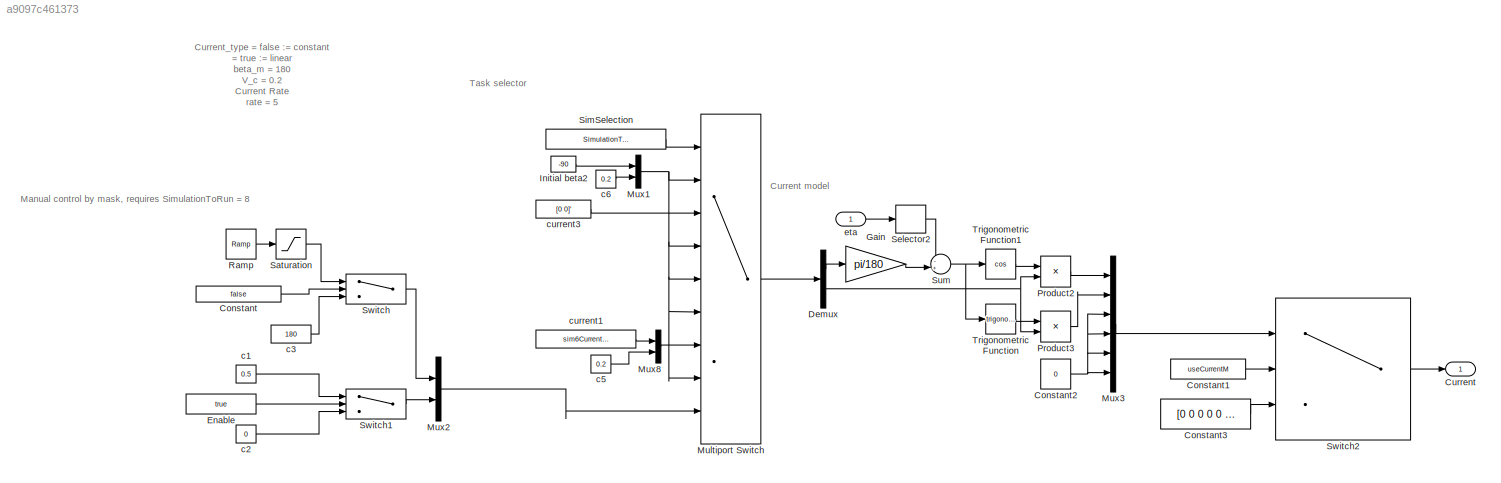
MODEL slx_a9097c461373
KIND model
CONFIG AbsTol = auto
CONFIG EnableMultiTasking = off
CONFIG FixedStep = 0.1
CONFIG MaxStep = auto
CONFIG MinStep = auto
CONFIG RelTol = 1e-3
CONFIG SampleTimeConstraint = Unconstrained
CONFIG Solver = FixedStepAuto
CONFIG SolverName = FixedStepAuto
CONFIG StartTime = 0.0
CONFIG StopTime = 10.0
BLOCK [Constant] Constant
  Value = false
BLOCK [Constant] Constant1
  Value = useCurrentM
BLOCK [Constant] Constant2
  Value = 0
BLOCK [Constant] Constant3
  Value = [0 0 0 0 0 0]'
BLOCK [Outport] Current
  IconDisplay = Port number
  PortDimensions = 6
BLOCK [Demux] Demux
  DisplayOption = bar
  Outputs = 2
  Ports = [1, 2]
BLOCK [Constant] Enable
  Value = true
BLOCK [Gain] Gain
  Gain = pi/180
  OutDataTypeStr = Inherit: Inherit via internal rule
  ParamDataTypeStr = Inherit: Inherit via internal rule
  SaturateOnIntegerOverflow = off
BLOCK [Constant] Initial beta2
  Value = -90
BLOCK [MultiPortSwitch] Multiport Switch
  DiagnosticForDefault = None
  InputSameDT = off
  Inputs = 8
  Ports = [9, 1]
  SaturateOnIntegerOverflow = off
BLOCK [Mux] Mux1
  DisplayOption = bar
  Inputs = 2
  Ports = [2, 1]
BLOCK [Mux] Mux2
  DisplayOption = bar
  Inputs = 2
  Ports = [2, 1]
BLOCK [Mux] Mux3
  DisplayOption = bar
  Inputs = 6
  Ports = [6, 1]
BLOCK [Mux] Mux8
  DisplayOption = bar
  Inputs = 2
  Ports = [2, 1]
BLOCK [Product] Product2
  InputSameDT = off
  OutDataTypeStr = Inherit: Inherit via internal rule
  Ports = [2, 1]
  RndMeth = Floor
  SaturateOnIntegerOverflow = off
BLOCK [Product] Product3
  InputSameDT = off
  OutDataTypeStr = Inherit: Inherit via internal rule
  Ports = [2, 1]
  RndMeth = Floor
  SaturateOnIntegerOverflow = off
BLOCK [Reference] Ramp  REF=simulink/Sources/Ramp
  Ports = [0, 1]
  SourceBlock = simulink/Sources/Ramp
  SourceProductBaseCode = SL
  SourceProductName = Simulink
  SourceType = Ramp
BLOCK [Saturate] Saturation
  InputPortMap = u0
  LowerLimit = 180
  Ports = [1, 1]
  UpperLimit = 270
BLOCK [Selector] Selector2
  IndexOptions = Index vector (dialog)
  Indices = 3
  InputPortWidth = 3
  OutputSizes = 1
  Ports = [1, 1]
BLOCK [Constant] SimSelection
  Value = SimulationToRun
BLOCK [Sum] Sum
  IconShape = round
  InputSameDT = off
  Inputs = -+|
  OutDataTypeStr = Inherit: Inherit via internal rule
  Ports = [2, 1]
  SaturateOnIntegerOverflow = off
BLOCK [Switch] Switch
  Criteria = u2 ~= 0
  InputSameDT = off
  SaturateOnIntegerOverflow = off
BLOCK [Switch] Switch1
  Criteria = u2 ~= 0
  InputSameDT = off
  SaturateOnIntegerOverflow = off
BLOCK [Switch] Switch2
  Criteria = u2 ~= 0
  InputSameDT = off
  SaturateOnIntegerOverflow = off
BLOCK [Trigonometry] Trigonometric Function
  Ports = [1, 1]
BLOCK [Trigonometry] Trigonometric Function1
  Operator = cos
  Ports = [1, 1]
BLOCK [Constant] c1
  Value = 0.5
BLOCK [Constant] c2
  Value = 0
BLOCK [Constant] c3
  Value = 180
BLOCK [Constant] c5
  Value = 0.2
BLOCK [Constant] c6
  Value = 0.2
BLOCK [Constant] current1
  Value = sim6CurrentAngle
BLOCK [Constant] current3
  Value = [0 0]'
BLOCK [Inport] eta
  IconDisplay = Port number
  PortDimensions = 3
ANNOTATION (root): Current model
ANNOTATION (root): Current_type = false := constant = true := linear beta_m = 180 V_c = 0.2 Current Rate rate = 5 Current Initial Angle lin_from = 180 Current Final Angle lin_to = 270
ANNOTATION (root): Manual control by mask, requires SimulationToRun = 8
ANNOTATION (root): Task selector
LINE Constant1:1 -> Switch2:2
NET Constant2:1 -> Mux3:3, Mux3:4, Mux3:5, Mux3:6
LINE Constant3:1 -> Switch2:3
LINE Constant:1 -> Switch:2
LINE Demux:1 -> Gain:1
NET Demux:2 -> Product2:2, Product3:2
LINE Enable:1 -> Switch1:2
LINE Gain:1 -> Sum:2
LINE Initial beta2:1 -> Mux1:1
LINE Multiport Switch:1 -> Demux:1
NET Mux1:1 -> Multiport Switch:2, Multiport Switch:4, Multiport Switch:5, Multiport Switch:6, Multiport Switch:8
LINE Mux2:1 -> Multiport Switch:9
LINE Mux3:1 -> Switch2:1
LINE Mux8:1 -> Multiport Switch:7
LINE Product2:1 -> Mux3:1
LINE Product3:1 -> Mux3:2
LINE Ramp:1 -> Saturation:1
LINE Saturation:1 -> Switch:1
LINE Selector2:1 -> Sum:1
LINE SimSelection:1 -> Multiport Switch:1
NET Sum:1 -> Trigonometric Function1:1, Trigonometric Function:1
LINE Switch1:1 -> Mux2:2
LINE Switch2:1 -> Current:1
LINE Switch:1 -> Mux2:1
LINE Trigonometric Function1:1 -> Product2:1
LINE Trigonometric Function:1 -> Product3:1
LINE c1:1 -> Switch1:1
LINE c2:1 -> Switch1:3
LINE c3:1 -> Switch:3
LINE c5:1 -> Mux8:2
LINE c6:1 -> Mux1:2
LINE current1:1 -> Mux8:1
LINE current3:1 -> Multiport Switch:3
LINE eta:1 -> Selector2:1
note: NET lines group one-source signal fan-out (src -> all destinations, sorted); 1:1 wires keep LINE
